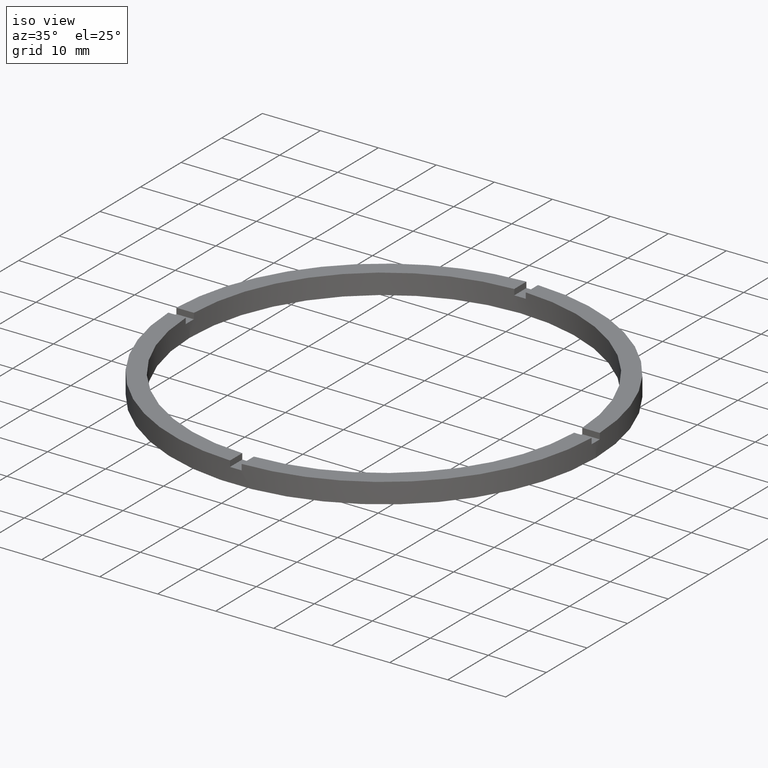
[diagram: clean part render]
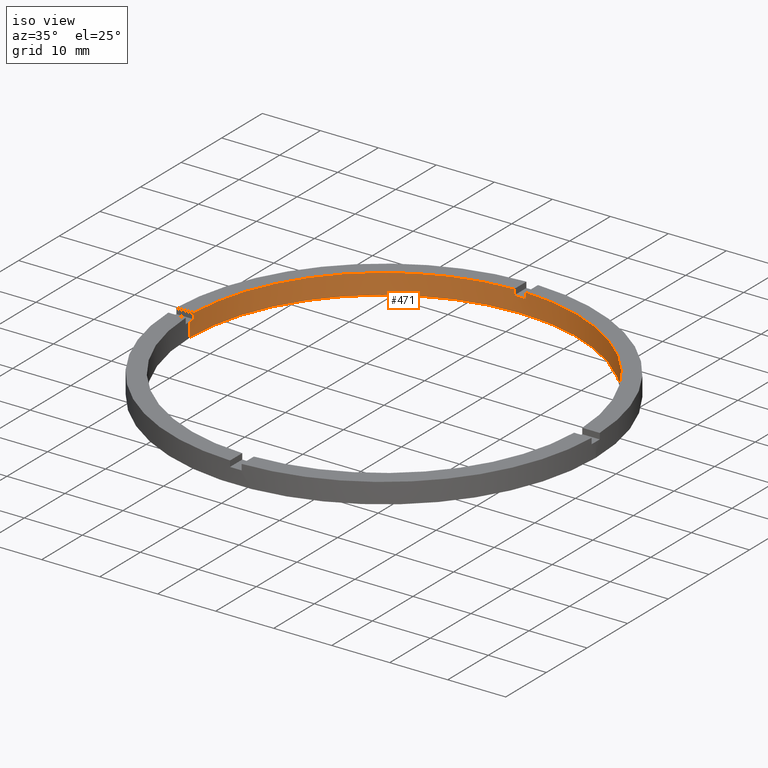
[diagram: same view with one face highlighted and labeled with its STEP entity id]
A machine part, iso view. The second image highlights one B-rep face of the part: STEP entity #471.
In plain terms, the highlighted cylindrical surface (partial cylindrical patch) has radius 33.5 mm, axis along (-0, -0, -1).
Its self-contained STEP definition (entity closure, byte-faithful):
#2 = CARTESIAN_POINT ( 'NONE',  ( 0.000000000000000000, 0.000000000000000000, 3.500000000000000000 ) ) ;
#8 = VERTEX_POINT ( 'NONE', #79 ) ;
#11 = VERTEX_POINT ( 'NONE', #29 ) ;
#18 = ORIENTED_EDGE ( 'NONE', *, *, #322, .T. ) ;
#28 = CARTESIAN_POINT ( 'NONE',  ( -1.000000000000025091, 33.48507130050644065, 2.500000000000000000 ) ) ;
#29 = CARTESIAN_POINT ( 'NONE',  ( -33.50000000000000000, 0.000000000000000000, 2.500000000000000000 ) ) ;
#31 = DIRECTION ( 'NONE',  ( -0.000000000000000000, -0.000000000000000000, -1.000000000000000000 ) ) ;
#35 = EDGE_CURVE ( 'NONE', #629, #782, #618, .T. ) ;
#39 = DIRECTION ( 'NONE',  ( -0.000000000000000000, -0.000000000000000000, -1.000000000000000000 ) ) ;
#41 = EDGE_CURVE ( 'NONE', #493, #378, #603, .T. ) ;
#52 = CIRCLE ( 'NONE', #355, 33.50000000000000000 ) ;
#55 = AXIS2_PLACEMENT_3D ( 'NONE', #357, #781, #561 ) ;
#56 = LINE ( 'NONE', #507, #330 ) ;
#59 = VECTOR ( 'NONE', #173, 1000.000000000000000 ) ;
#73 = CARTESIAN_POINT ( 'NONE',  ( 0.9999999999999749090, 33.48507130050644776, 3.500000000000000000 ) ) ;
#79 = CARTESIAN_POINT ( 'NONE',  ( 33.50000000000000000, 4.102566777143633774E-15, 0.000000000000000000 ) ) ;
#86 = CYLINDRICAL_SURFACE ( 'NONE', #717, 33.50000000000000000 ) ;
#101 = VECTOR ( 'NONE', #320, 1000.000000000000000 ) ;
#143 = VERTEX_POINT ( 'NONE', #388 ) ;
#155 = VERTEX_POINT ( 'NONE', #265 ) ;
#158 = CARTESIAN_POINT ( 'NONE',  ( 33.50000000000000000, 4.102566777143633774E-15, 2.500000000000000000 ) ) ;
#165 = CARTESIAN_POINT ( 'NONE',  ( 0.000000000000000000, 0.000000000000000000, 3.500000000000000000 ) ) ;
#173 = DIRECTION ( 'NONE',  ( 0.000000000000000000, 0.000000000000000000, 1.000000000000000000 ) ) ;
#176 = CARTESIAN_POINT ( 'NONE',  ( 0.000000000000000000, 0.000000000000000000, 2.500000000000000000 ) ) ;
#178 = CARTESIAN_POINT ( 'NONE',  ( 0.000000000000000000, 0.000000000000000000, 2.500000000000000000 ) ) ;
#189 = EDGE_LOOP ( 'NONE', ( #447, #695, #741, #451, #696, #617, #364, #18, #453, #647, #272, #398 ) ) ;
#198 = CARTESIAN_POINT ( 'NONE',  ( 0.9999999999999749090, 33.48507130050644776, 3.500000000000000000 ) ) ;
#203 = CARTESIAN_POINT ( 'NONE',  ( -33.48507130050644776, 0.9999999999999733546, 3.500000000000000000 ) ) ;
#215 = DIRECTION ( 'NONE',  ( 0.000000000000000000, 0.000000000000000000, 1.000000000000000000 ) ) ;
#238 = VERTEX_POINT ( 'NONE', #531 ) ;
#252 = DIRECTION ( 'NONE',  ( 0.000000000000000000, 0.000000000000000000, 1.000000000000000000 ) ) ;
#253 = CARTESIAN_POINT ( 'NONE',  ( 0.000000000000000000, 0.000000000000000000, 0.000000000000000000 ) ) ;
#265 = CARTESIAN_POINT ( 'NONE',  ( 0.9999999999999749090, 33.48507130050644776, 2.500000000000000000 ) ) ;
#270 = DIRECTION ( 'NONE',  ( -0.000000000000000000, -0.000000000000000000, -1.000000000000000000 ) ) ;
#271 = VERTEX_POINT ( 'NONE', #198 ) ;
#272 = ORIENTED_EDGE ( 'NONE', *, *, #716, .T. ) ;
#278 = CARTESIAN_POINT ( 'NONE',  ( -1.000000000000025091, 33.48507130050644065, 3.500000000000000000 ) ) ;
#290 = EDGE_CURVE ( 'NONE', #623, #627, #395, .T. ) ;
#314 = DIRECTION ( 'NONE',  ( -1.000000000000000000, 0.000000000000000000, 0.000000000000000000 ) ) ;
#320 = DIRECTION ( 'NONE',  ( -0.000000000000000000, -0.000000000000000000, -1.000000000000000000 ) ) ;
#322 = EDGE_CURVE ( 'NONE', #493, #627, #677, .T. ) ;
#326 = VECTOR ( 'NONE', #31, 1000.000000000000000 ) ;
#330 = VECTOR ( 'NONE', #558, 1000.000000000000000 ) ;
#345 = LINE ( 'NONE', #704, #326 ) ;
#355 = AXIS2_PLACEMENT_3D ( 'NONE', #2, #252, #456 ) ;
#357 = CARTESIAN_POINT ( 'NONE',  ( 0.000000000000000000, 0.000000000000000000, 2.500000000000000000 ) ) ;
#364 = ORIENTED_EDGE ( 'NONE', *, *, #41, .F. ) ;
#365 = DIRECTION ( 'NONE',  ( 0.000000000000000000, 0.000000000000000000, 1.000000000000000000 ) ) ;
#374 = EDGE_CURVE ( 'NONE', #623, #11, #691, .T. ) ;
#378 = VERTEX_POINT ( 'NONE', #28 ) ;
#388 = CARTESIAN_POINT ( 'NONE',  ( 33.48507130050644776, 0.9999999999998421263, 3.500000000000000000 ) ) ;
#395 = LINE ( 'NONE', #203, #399 ) ;
#398 = ORIENTED_EDGE ( 'NONE', *, *, #743, .F. ) ;
#399 = VECTOR ( 'NONE', #365, 1000.000000000000000 ) ;
#402 = CARTESIAN_POINT ( 'NONE',  ( 33.50000000000000000, 4.102566777143633774E-15, 3.500000000000000000 ) ) ;
#423 = EDGE_CURVE ( 'NONE', #155, #378, #432, .T. ) ;
#432 = CIRCLE ( 'NONE', #690, 33.50000000000000000 ) ;
#447 = ORIENTED_EDGE ( 'NONE', *, *, #601, .F. ) ;
#451 = ORIENTED_EDGE ( 'NONE', *, *, #522, .T. ) ;
#453 = ORIENTED_EDGE ( 'NONE', *, *, #290, .F. ) ;
#456 = DIRECTION ( 'NONE',  ( 1.000000000000000000, 0.000000000000000000, 0.000000000000000000 ) ) ;
#470 = AXIS2_PLACEMENT_3D ( 'NONE', #548, #783, #485 ) ;
#471 = ADVANCED_FACE ( 'NONE', ( #615 ), #86, .F. ) ;
#485 = DIRECTION ( 'NONE',  ( 1.000000000000000000, 0.000000000000000000, 0.000000000000000000 ) ) ;
#488 = AXIS2_PLACEMENT_3D ( 'NONE', #253, #215, #747 ) ;
#493 = VERTEX_POINT ( 'NONE', #549 ) ;
#497 = CARTESIAN_POINT ( 'NONE',  ( -33.48507130050644776, 0.9999999999999733546, 3.500000000000000000 ) ) ;
#507 = CARTESIAN_POINT ( 'NONE',  ( 33.48507130050644776, 0.9999999999998421263, 3.500000000000000000 ) ) ;
#520 = AXIS2_PLACEMENT_3D ( 'NONE', #176, #711, #749 ) ;
#522 = EDGE_CURVE ( 'NONE', #143, #271, #52, .T. ) ;
#531 = CARTESIAN_POINT ( 'NONE',  ( -33.50000000000000000, 0.000000000000000000, 0.000000000000000000 ) ) ;
#547 = DIRECTION ( 'NONE',  ( 1.000000000000000000, 0.000000000000000000, 0.000000000000000000 ) ) ;
#548 = CARTESIAN_POINT ( 'NONE',  ( 0.000000000000000000, 0.000000000000000000, 3.500000000000000000 ) ) ;
#549 = CARTESIAN_POINT ( 'NONE',  ( -1.000000000000025091, 33.48507130050644065, 3.500000000000000000 ) ) ;
#552 = CARTESIAN_POINT ( 'NONE',  ( 33.48507130050644776, 0.9999999999998421263, 2.500000000000000000 ) ) ;
#555 = EDGE_CURVE ( 'NONE', #143, #782, #56, .T. ) ;
#558 = DIRECTION ( 'NONE',  ( -0.000000000000000000, -0.000000000000000000, -1.000000000000000000 ) ) ;
#561 = DIRECTION ( 'NONE',  ( 1.000000000000000000, 0.000000000000000000, 0.000000000000000000 ) ) ;
#565 = DIRECTION ( 'NONE',  ( 0.000000000000000000, -0.000000000000000000, 1.000000000000000000 ) ) ;
#591 = VECTOR ( 'NONE', #39, 1000.000000000000000 ) ;
#595 = LINE ( 'NONE', #73, #59 ) ;
#601 = EDGE_CURVE ( 'NONE', #629, #8, #604, .T. ) ;
#603 = LINE ( 'NONE', #278, #101 ) ;
#604 = LINE ( 'NONE', #402, #591 ) ;
#607 = CIRCLE ( 'NONE', #488, 33.50000000000000000 ) ;
#615 = FACE_OUTER_BOUND ( 'NONE', #189, .T. ) ;
#617 = ORIENTED_EDGE ( 'NONE', *, *, #423, .T. ) ;
#618 = CIRCLE ( 'NONE', #520, 33.50000000000000000 ) ;
#623 = VERTEX_POINT ( 'NONE', #714 ) ;
#627 = VERTEX_POINT ( 'NONE', #497 ) ;
#629 = VERTEX_POINT ( 'NONE', #158 ) ;
#647 = ORIENTED_EDGE ( 'NONE', *, *, #374, .T. ) ;
#677 = CIRCLE ( 'NONE', #470, 33.50000000000000000 ) ;
#690 = AXIS2_PLACEMENT_3D ( 'NONE', #178, #565, #547 ) ;
#691 = CIRCLE ( 'NONE', #55, 33.50000000000000000 ) ;
#695 = ORIENTED_EDGE ( 'NONE', *, *, #35, .T. ) ;
#696 = ORIENTED_EDGE ( 'NONE', *, *, #702, .F. ) ;
#702 = EDGE_CURVE ( 'NONE', #155, #271, #595, .T. ) ;
#704 = CARTESIAN_POINT ( 'NONE',  ( -33.50000000000000000, 0.000000000000000000, 3.500000000000000000 ) ) ;
#711 = DIRECTION ( 'NONE',  ( 0.000000000000000000, 0.000000000000000000, 1.000000000000000000 ) ) ;
#714 = CARTESIAN_POINT ( 'NONE',  ( -33.48507130050644776, 0.9999999999999733546, 2.500000000000000000 ) ) ;
#716 = EDGE_CURVE ( 'NONE', #11, #238, #345, .T. ) ;
#717 = AXIS2_PLACEMENT_3D ( 'NONE', #165, #270, #314 ) ;
#741 = ORIENTED_EDGE ( 'NONE', *, *, #555, .F. ) ;
#743 = EDGE_CURVE ( 'NONE', #8, #238, #607, .T. ) ;
#747 = DIRECTION ( 'NONE',  ( 1.000000000000000000, 0.000000000000000000, 0.000000000000000000 ) ) ;
#749 = DIRECTION ( 'NONE',  ( 1.000000000000000000, 0.000000000000000000, 0.000000000000000000 ) ) ;
#781 = DIRECTION ( 'NONE',  ( 0.000000000000000000, 0.000000000000000000, 1.000000000000000000 ) ) ;
#782 = VERTEX_POINT ( 'NONE', #552 ) ;
#783 = DIRECTION ( 'NONE',  ( 0.000000000000000000, 0.000000000000000000, 1.000000000000000000 ) ) ;